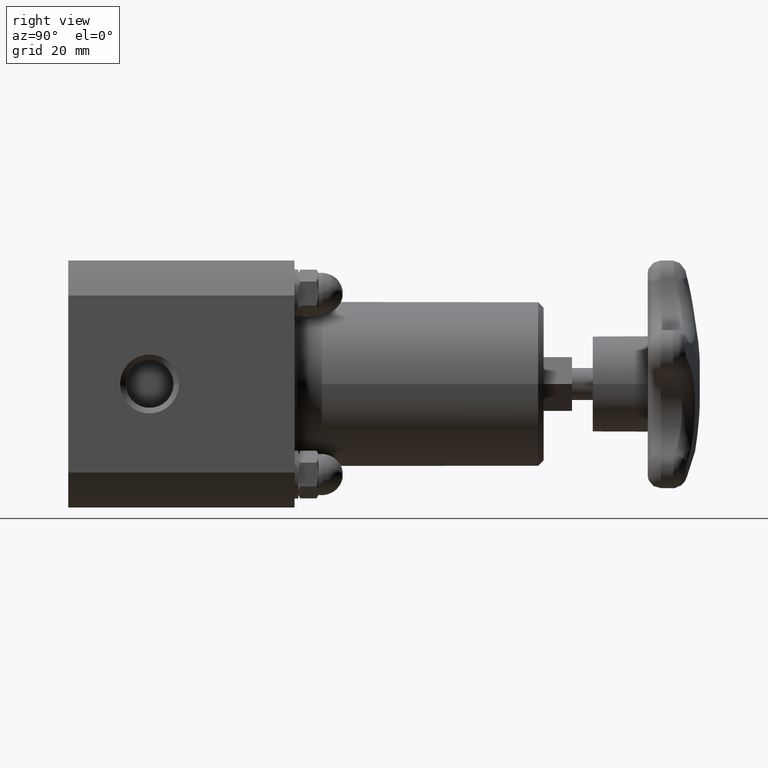
[diagram: clean part render]
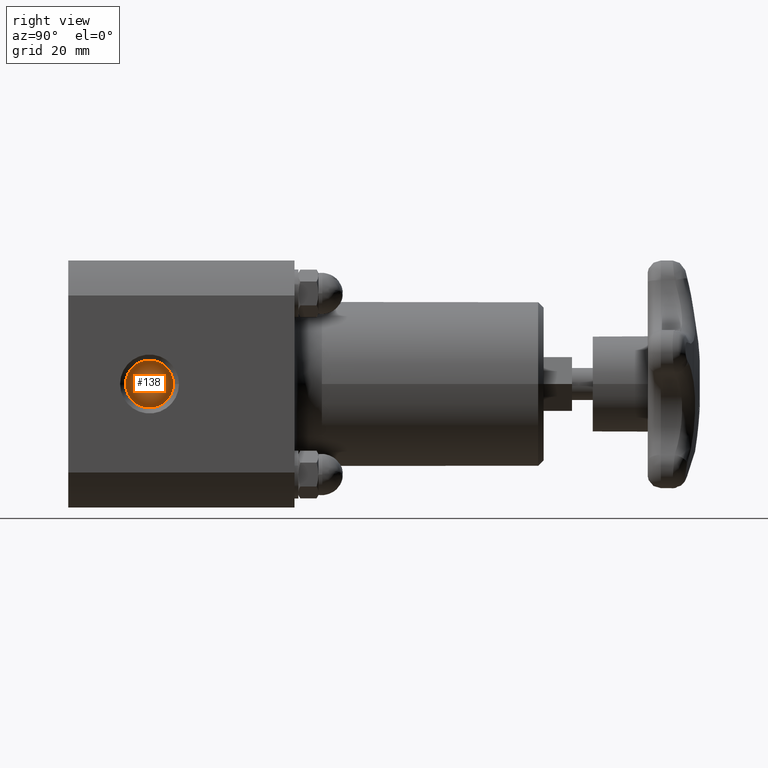
[diagram: same view with one face highlighted and labeled with its STEP entity id]
A machine part, right view. The second image highlights one B-rep face of the part: STEP entity #138.
In plain terms, the highlighted planar face has unit normal (1, 0, 0).
Its self-contained STEP definition (entity closure, byte-faithful):
#122=CARTESIAN_POINT('',(0.650000000000000,0.740000000000000,0.0));
#123=DIRECTION('',(1.0,0.0,0.0));
#124=DIRECTION('',(0.0,0.0,-1.0));
#125=AXIS2_PLACEMENT_3D('',#122,#123,#124);
#126=PLANE('',#125);
#127=CARTESIAN_POINT('',(0.650000000000000,0.958500000000000,0.0));
#128=VERTEX_POINT('',#127);
#129=CARTESIAN_POINT('',(0.650000000000000,0.740000000000000,0.0));
#130=DIRECTION('',(1.0,0.0,0.0));
#131=DIRECTION('',(0.0,1.0,0.0));
#132=AXIS2_PLACEMENT_3D('',#129,#130,#131);
#133=CIRCLE('',#132,0.218500000000000);
#134=EDGE_CURVE('',#128,#128,#133,.T.);
#135=ORIENTED_EDGE('',*,*,#134,.T.);
#136=EDGE_LOOP('',(#135));
#137=FACE_OUTER_BOUND('',#136,.T.);
#138=ADVANCED_FACE('',(#137),#126,.T.);